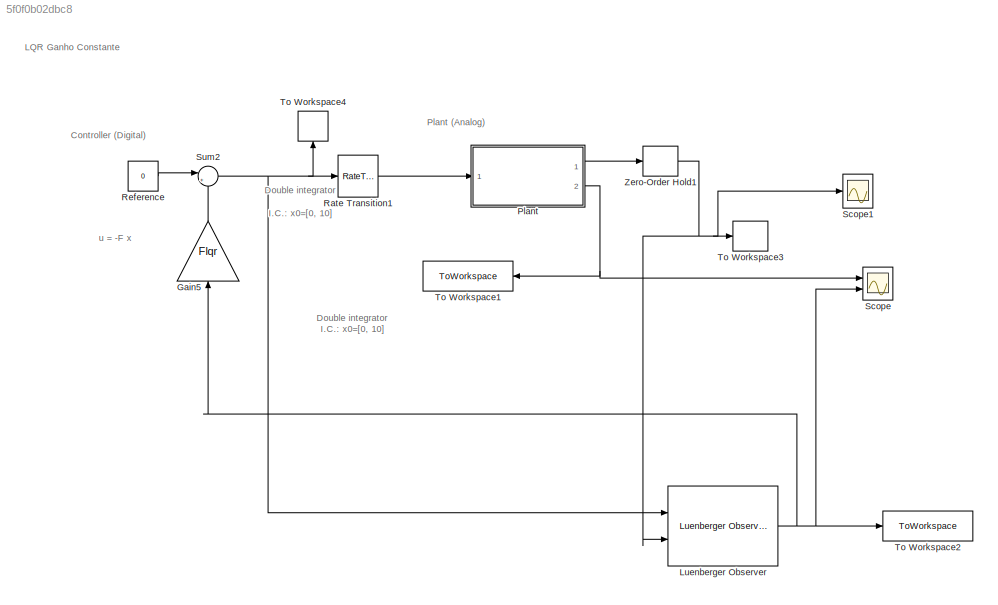
MODEL slx_5f0f0b02dbc8
KIND model
CONFIG AbsTol = auto
CONFIG EnableMultiTasking = off
CONFIG FixedStep = 1e-3
CONFIG MaxStep = auto
CONFIG MinStep = auto
CONFIG RelTol = 1e-3
CONFIG SampleTimeConstraint = Unconstrained
CONFIG SolverName = ode4
CONFIG StartTime = 0.0
CONFIG StopTime = 10
BLOCK [Gain] Gain5
  Gain = Flqr
  Multiplication = Matrix(K*u) (u vector)
  NameLocation = left
BLOCK [Reference] Luenberger Observer  REF=eeLuenbergerObserver/Luenberger Observer
  Ports = [2, 1]
  SourceBlock = eeLuenbergerObserver/Luenberger Observer
  SourceProductBaseCode = PS
  SourceType = Luenberger Observer
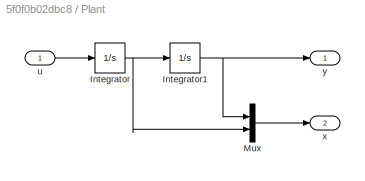
BLOCK [SubSystem] Plant
  Ports = [1, 2]
  RequestExecContextInheritance = off
BLOCK [Integrator] Plant/Integrator
  InitialCondition = x20
  Ports = [1, 1]
BLOCK [Integrator] Plant/Integrator1
  InitialCondition = x10
  Ports = [1, 1]
BLOCK [Mux] Plant/Mux
  DisplayOption = bar
  Inputs = 2
  Ports = [2, 1]
BLOCK [Inport] Plant/u
BLOCK [Outport] Plant/x
  Port = 2
BLOCK [Outport] Plant/y
BLOCK [RateTransition] Rate Transition1
  Integrity = off
  OutPortSampleTime = h/10
BLOCK [Constant] Reference
  SampleTime = h
  Value = 0
BLOCK [Scope] Scope
  Floating = off
  NumInputPorts = 2
  Ports = [2]
  ScopeSpecificationString = Simulink.scopes.TimeScopeBlockCfg('CurrentConfiguration', extmgr.ConfigurationSet(extmgr.Configuration('Core','General UI',true),extmgr.Configuration('Core','Source UI',true),extmgr.Configuration('Sources','WiredSimulink',true),extmgr.Configuration('Visuals','Time Domain',true,'SerializedDisplays',{struct('MinYLimReal','-39925477784390887990517124565034535862160627840207919256911479973661856917018...<+2428ch>
BLOCK [Scope] Scope1
  Floating = off
  NumInputPorts = 1
  Ports = [1]
  ScopeSpecificationString = Simulink.scopes.TimeScopeBlockCfg('CurrentConfiguration', extmgr.ConfigurationSet(extmgr.Configuration('Core','General UI',true),extmgr.Configuration('Core','Source UI',true),extmgr.Configuration('Sources','WiredSimulink',true,'DataLoggingVariableName','ScopeData1'),extmgr.Configuration('Visuals','Time Domain',true,'SerializedDisplays',{struct('MinYLimReal','-0.444','MaxYLimReal','3.99602','YLabel...<+1444ch>
BLOCK [Sum] Sum2
  Inputs = |+-
  Ports = [2, 1]
BLOCK [ToWorkspace] To Workspace1
  FixptAsFi = on
  MaxDataPoints = inf
  NameLocation = top
  Ports = [1]
  SampleTime = h
  SaveFormat = Timeseries
  VariableName = x
BLOCK [ToWorkspace] To Workspace2
  FixptAsFi = on
  MaxDataPoints = inf
  Ports = [1]
  SampleTime = h
  SaveFormat = Timeseries
  VariableName = x_hat
BLOCK [ToWorkspace] To Workspace3
  FixptAsFi = on
  MaxDataPoints = inf
  Ports = [1]
  SampleTime = -1
  SaveFormat = Timeseries
  VariableName = yd
BLOCK [ToWorkspace] To Workspace4
  FixptAsFi = on
  MaxDataPoints = inf
  NameLocation = right
  Ports = [1]
  SampleTime = h
  SaveFormat = Timeseries
  VariableName = ud
BLOCK [ZeroOrderHold] Zero-Order Hold1
  NameLocation = top
  SampleTime = h
ANNOTATION (root): u = -F x
ANNOTATION (root): Controller (Digital)
ANNOTATION (root): Double integrator I.C.: x0=[0, 10]
ANNOTATION (root): LQR Ganho Constante
ANNOTATION (root): Plant (Analog)
LINE Gain5:1 -> Sum2:2
NET Luenberger Observer:1 -> Gain5:1, Scope:2, To Workspace2:1
NET Plant/Integrator1:1 -> Plant/Mux:1, Plant/y:1
NET Plant/Integrator:1 -> Plant/Integrator1:1, Plant/Mux:2
LINE Plant/Mux:1 -> Plant/x:1
LINE Plant/u:1 -> Plant/Integrator:1
LINE Plant:1 -> Zero-Order Hold1:1
NET Plant:2 -> Scope:1, To Workspace1:1
LINE Rate Transition1:1 -> Plant:1
LINE Reference:1 -> Sum2:1
NET Sum2:1 -> Luenberger Observer:1, Rate Transition1:1, To Workspace4:1
NET Zero-Order Hold1:1 -> Luenberger Observer:2, Scope1:1, To Workspace3:1
note: NET lines group one-source signal fan-out (src -> all destinations, sorted); 1:1 wires keep LINE
